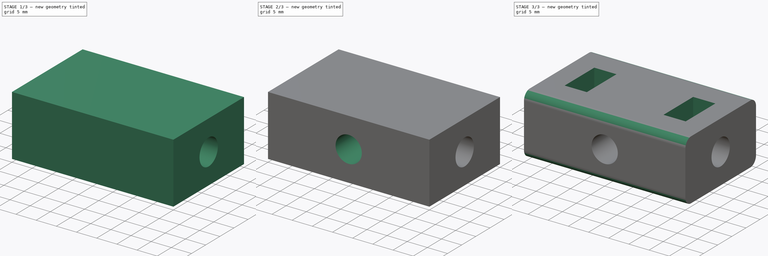
[diagram: build sequence overview — one tinted view per stage of 3, left to right]
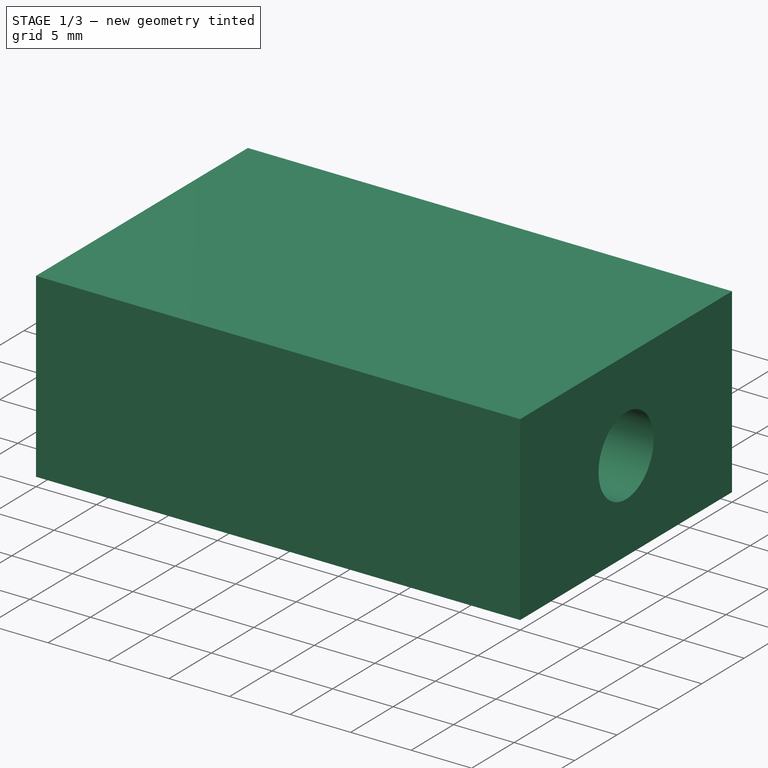
[diagram: stage 1 of 3 — iso view after this stage's code; geometry added in this stage tinted green]
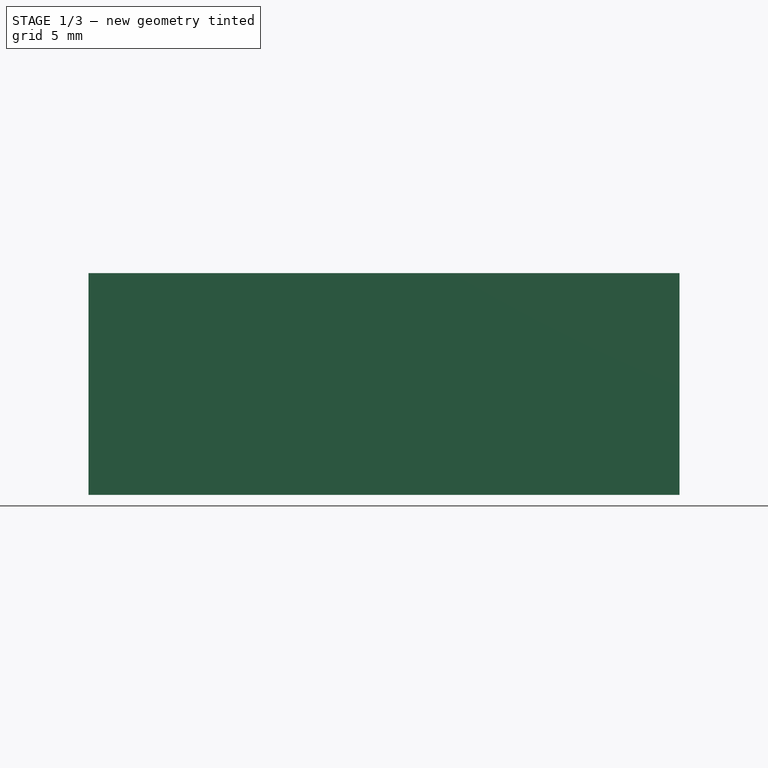
[diagram: stage 1 of 3 — front view after this stage's code; geometry added in this stage tinted green]
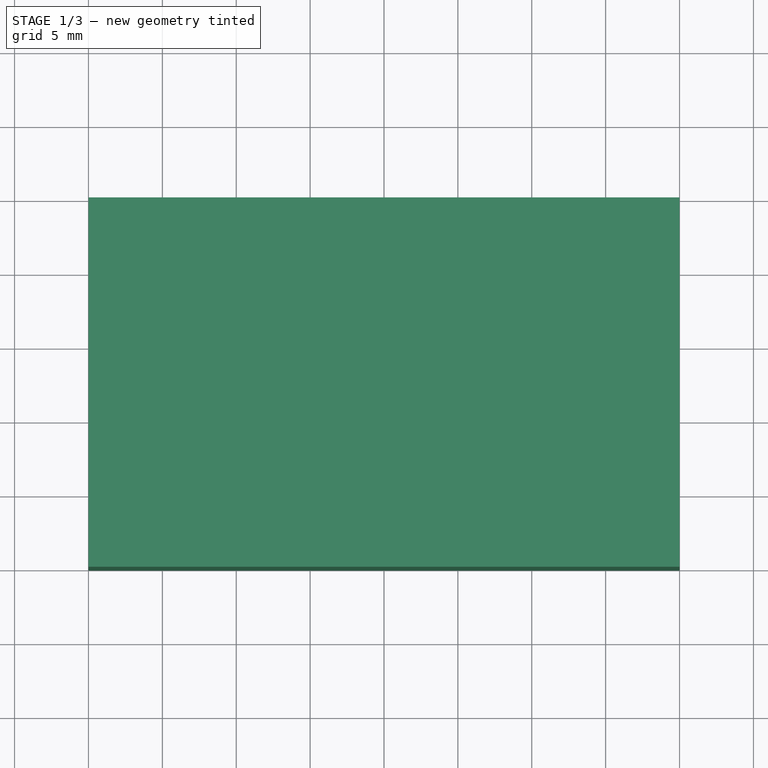
[diagram: stage 1 of 3 — top view after this stage's code; geometry added in this stage tinted green]
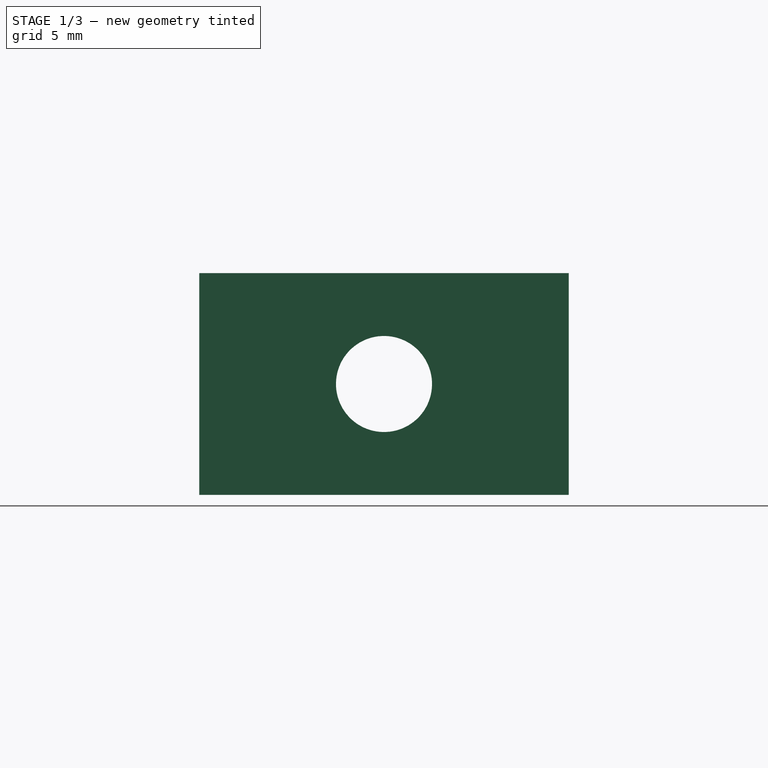
[diagram: stage 1 of 3 — right view after this stage's code; geometry added in this stage tinted green]
FCSTD DOCUMENT  (FreeCAD 0.21R33771 (Git))
Label: holder_type2_center
License: All rights reserved
LicenseURL: https://en.wikipedia.org/wiki/All_rights_reserved
objects: Sketcher::SketchObject×4, PartDesign::Pocket×3, PartDesign::Pad×1, PartDesign::Fillet×1, PartDesign::Body×1
note: 15 computed .brp shape members not serialized (recipe doc carries the construction recipe); baked Part::Feature solids carry a one-line shape summary decoded from their .brp

FEATURE [Sketcher::SketchObject] Sketch
  FullyConstrained = true
  MapMode = 5
  Support = -> [XY_Plane]
  sketch-geometry (4):
    g0: LineSegment StartX=0 StartY=0 StartZ=0 EndX=40 EndY=0 EndZ=0
    g1: LineSegment StartX=40 StartY=0 StartZ=0 EndX=40 EndY=25 EndZ=0
    g2: LineSegment StartX=40 StartY=25 StartZ=0 EndX=0 EndY=25 EndZ=0
    g3: LineSegment StartX=0 StartY=25 StartZ=0 EndX=0 EndY=0 EndZ=0
  constraints (11):
    c: Coincident(g0,g1)
    c: Coincident(g1,g2)
    c: Coincident(g2,g3)
    c: Coincident(g3,g0)
    c: Horizontal(g0)
    c: Horizontal(g2)
    c: Vertical(g1)
    c: Vertical(g3)
    c: Coincident(g0,g-1)
    c: DistanceY(g1,g1) = 25
    c: DistanceX(g2,g2) = 40
FEATURE [PartDesign::Pad] Pad
  Direction = (0,0,1)
  Length = 15
  Length2 = 10
  Profile = -> Sketch
  ReferenceAxis = -> Sketch [N_Axis]
  Type = 0
FEATURE [Sketcher::SketchObject] Sketch001
  ExternalGeometry = -> [Pad]
  FullyConstrained = true
  MapMode = 5
  Placement = pos=(40,0,0) rot=(0.57735,0.57735,0.57735;2.0944rad)
  Support = -> [Pad]
  sketch-geometry (4):
    g0: Circle CenterX=12.5 CenterY=7.5 CenterZ=0 NormalX=0 NormalY=0 NormalZ=1 AngleXU=0 Radius=3.25
    g1: LineSegment StartX=0 StartY=15 StartZ=0 EndX=12.5 EndY=7.5 EndZ=0
    g2: LineSegment StartX=12.5 StartY=7.5 StartZ=0 EndX=25 EndY=15 EndZ=0
    g3: LineSegment StartX=12.5 StartY=7.5 StartZ=0 EndX=0 EndY=9e-16 EndZ=0
  constraints (9):
    c: Diameter(g0) = 6.5
    c: Coincident(g1,g-3)
    c: Coincident(g1,g0)
    c: Coincident(g2,g0)
    c: Coincident(g2,g-3)
    c: Equal(g2,g1)
    c: Coincident(g3,g0)
    c: Coincident(g3,g-1)
    c: Equal(g1,g3)
FEATURE [PartDesign::Pocket] Pocket
  BaseFeature = -> Pad
  Direction = (-1,0,0)
  Length = 5
  Length2 = 5
  Profile = -> Sketch001
  ReferenceAxis = -> Sketch001 [N_Axis]
  Type = 1
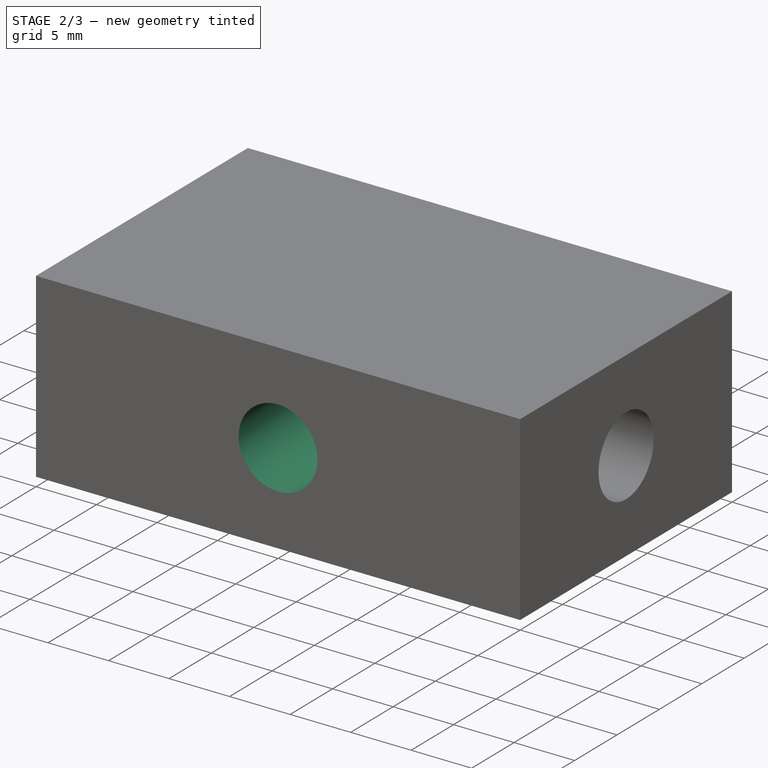
[diagram: stage 2 of 3 — iso view after this stage's code; geometry added in this stage tinted green]
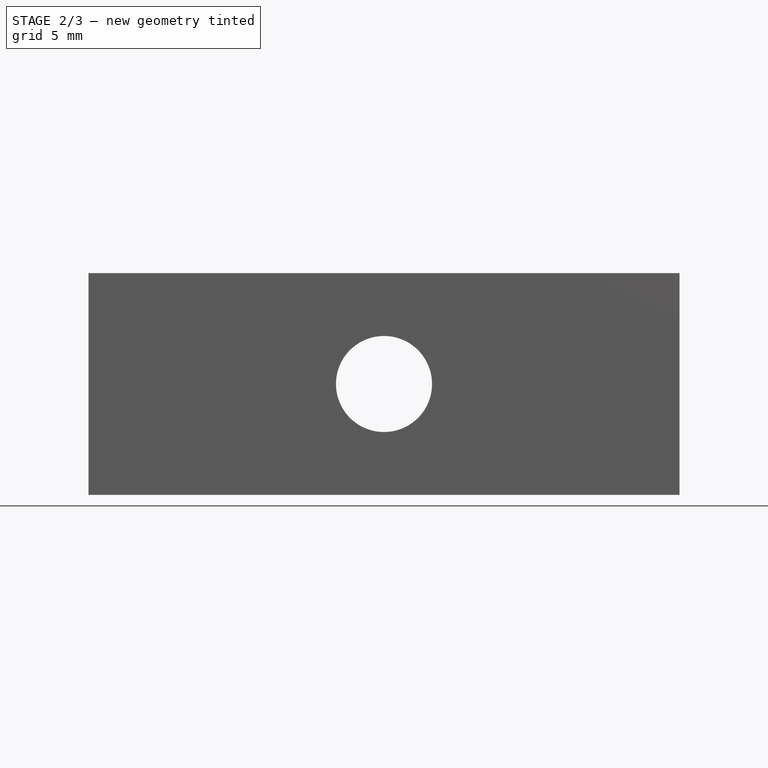
[diagram: stage 2 of 3 — front view after this stage's code; geometry added in this stage tinted green]
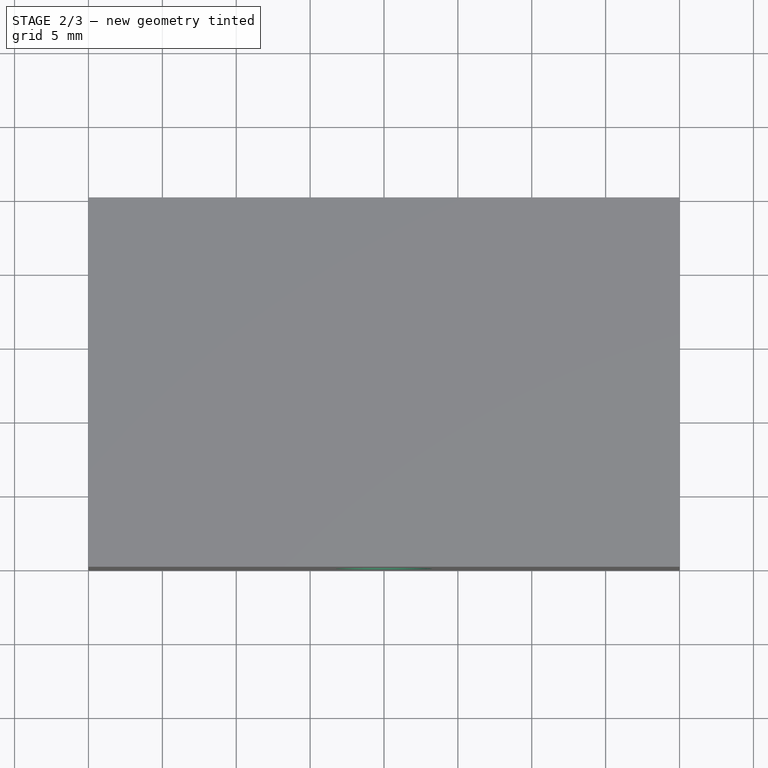
[diagram: stage 2 of 3 — top view after this stage's code; geometry added in this stage tinted green]
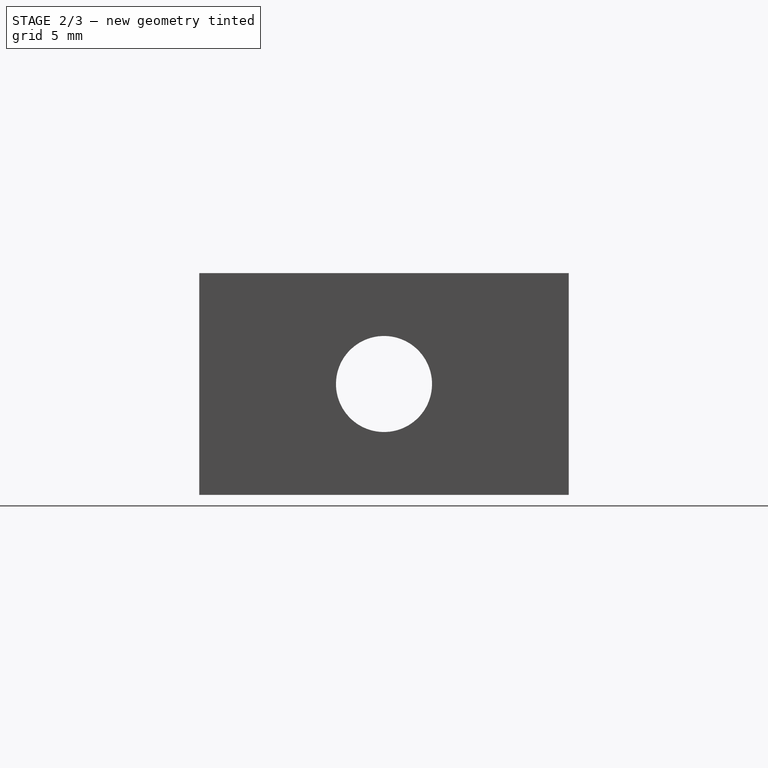
[diagram: stage 2 of 3 — right view after this stage's code; geometry added in this stage tinted green]
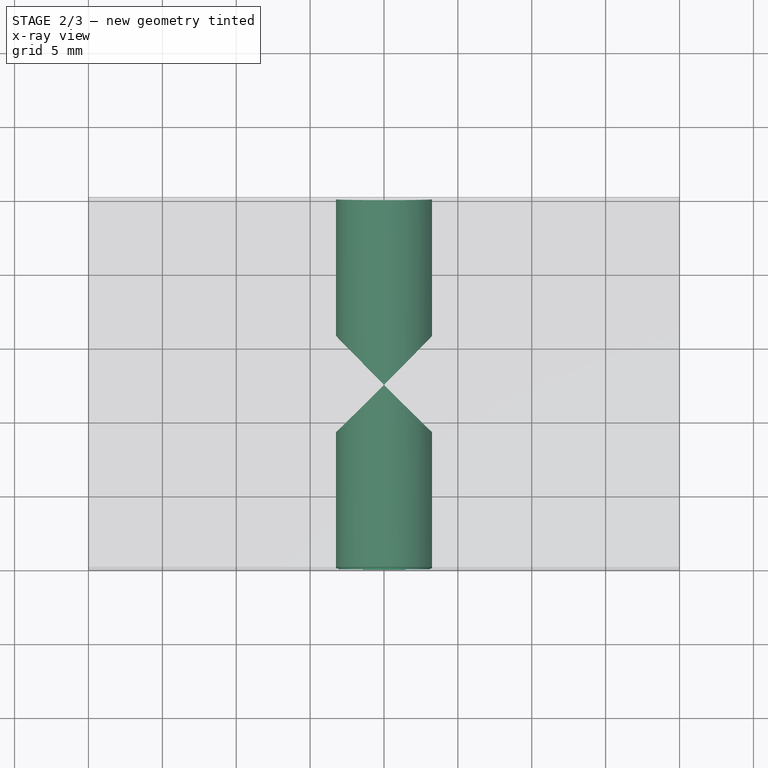
[diagram: stage 2 of 3 — x-ray composite at the top view; earlier geometry ghosted, this stage's added geometry solid]
FEATURE [Sketcher::SketchObject] Sketch002
  ExternalGeometry = -> [Pocket]
  FullyConstrained = true
  MapMode = 5
  Placement = pos=(0,0,0) rot=(1,0,0;1.5708rad)
  Support = -> [Pocket]
  sketch-geometry (4):
    g0: LineSegment StartX=0 StartY=15 StartZ=0 EndX=20 EndY=7.5 EndZ=0
    g1: LineSegment StartX=20 StartY=7.5 StartZ=0 EndX=40 EndY=15 EndZ=0
    g2: LineSegment StartX=20 StartY=7.5 StartZ=0 EndX=0 EndY=0 EndZ=0
    g3: Circle CenterX=20 CenterY=7.5 CenterZ=0 NormalX=0 NormalY=0 NormalZ=1 AngleXU=0 Radius=3.25
  constraints (9):
    c: Coincident(g0,g-3)
    c: Coincident(g1,g0)
    c: Coincident(g1,g-3)
    c: Coincident(g2,g-1)
    c: Equal(g1,g0)
    c: Equal(g0,g2)
    c: Coincident(g0,g3)
    c: Coincident(g3,g2)
    c: Diameter(g3) = 6.5
FEATURE [PartDesign::Pocket] Pocket001
  BaseFeature = -> Pocket
  Direction = (0,1,-2e-16)
  Length = 5
  Length2 = 5
  Profile = -> Sketch002
  ReferenceAxis = -> Sketch002 [N_Axis]
  Type = 1
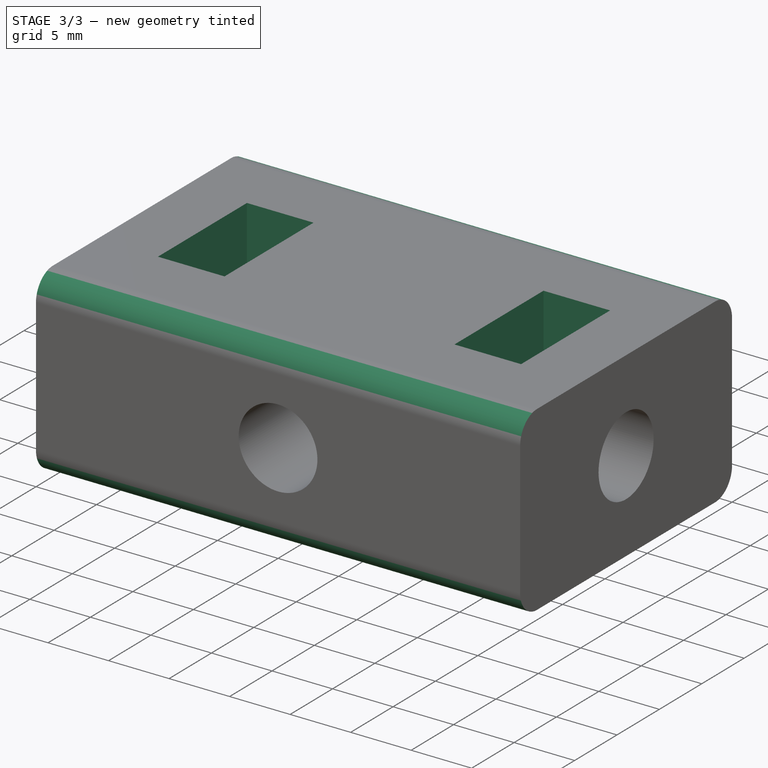
[diagram: stage 3 of 3 — iso view after this stage's code; geometry added in this stage tinted green]
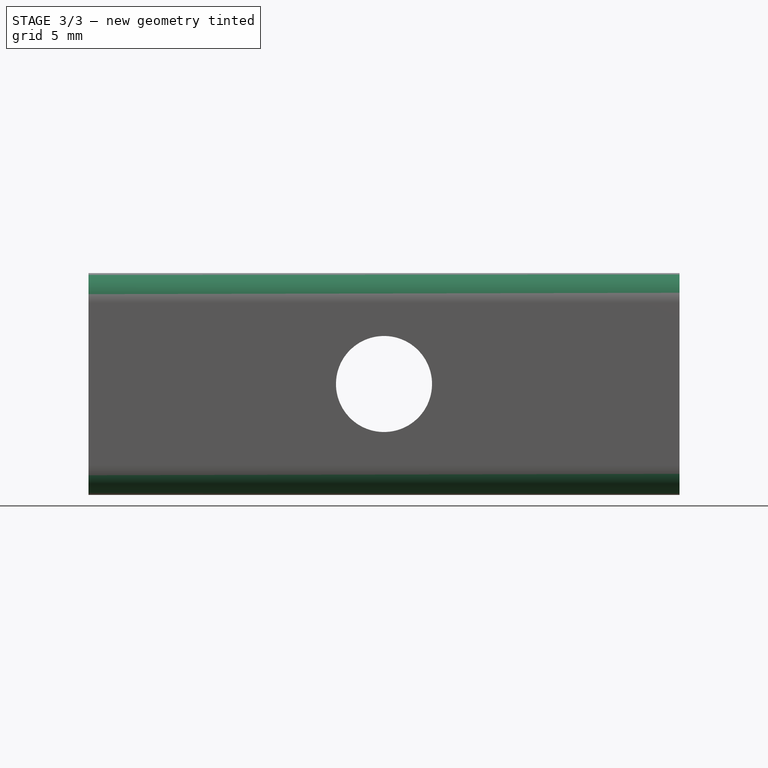
[diagram: stage 3 of 3 — front view after this stage's code; geometry added in this stage tinted green]
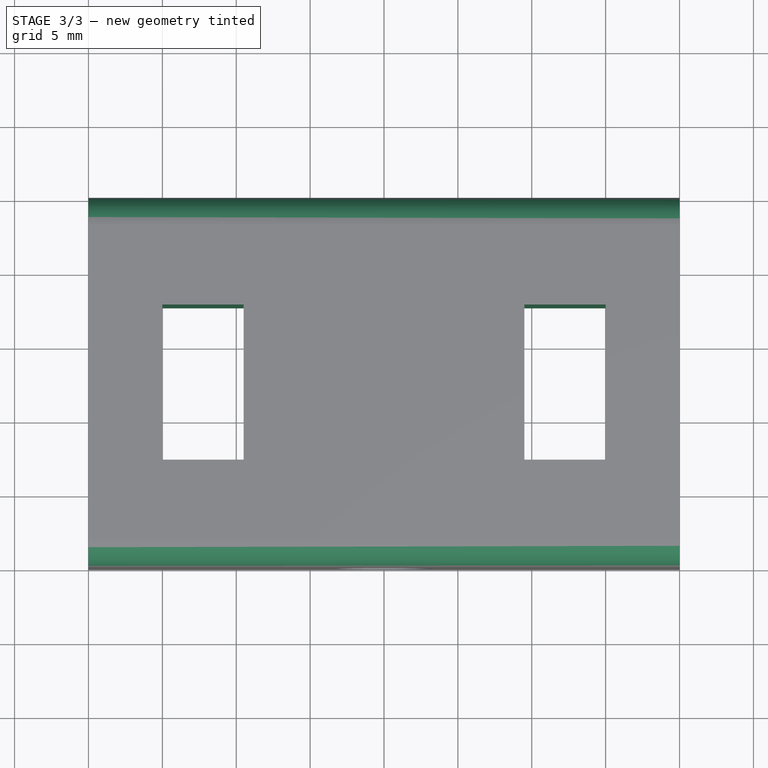
[diagram: stage 3 of 3 — top view after this stage's code; geometry added in this stage tinted green]
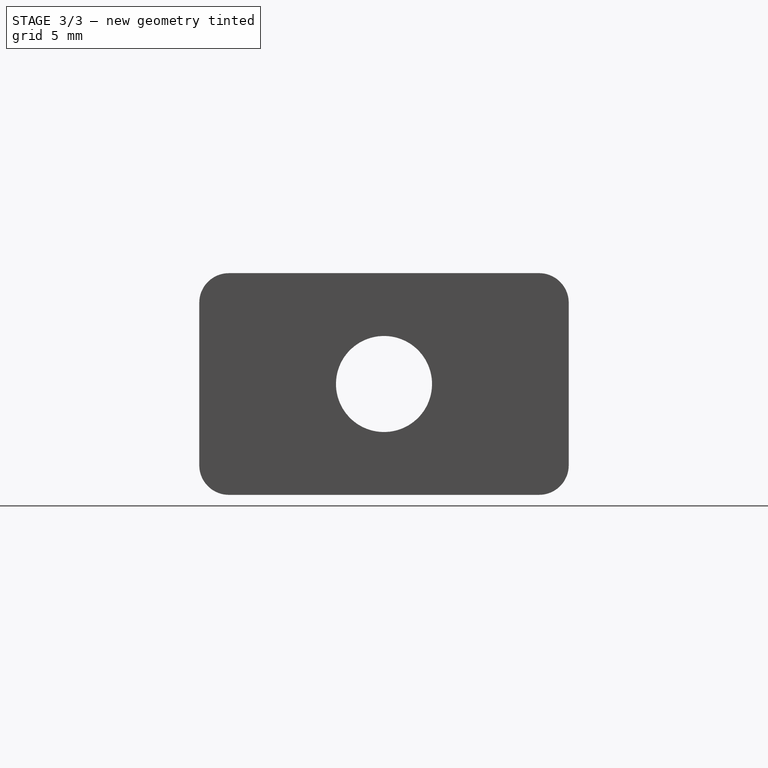
[diagram: stage 3 of 3 — right view after this stage's code; geometry added in this stage tinted green]
FEATURE [Sketcher::SketchObject] Sketch003
  ExternalGeometry = -> [Pocket001]
  FullyConstrained = true
  MapMode = 5
  Placement = pos=(0,0,15) rot=(0,0,1;0rad)
  Support = -> [Pocket001]
  sketch-geometry (12):
    g0: LineSegment StartX=5 StartY=17.75 StartZ=0 EndX=10.5 EndY=17.75 EndZ=0
    g1: LineSegment StartX=10.5 StartY=17.75 StartZ=0 EndX=10.5 EndY=7.25 EndZ=0
    g2: LineSegment StartX=10.5 StartY=7.25 StartZ=0 EndX=5 EndY=7.25 EndZ=0
    g3: LineSegment StartX=5 StartY=7.25 StartZ=0 EndX=5 EndY=17.75 EndZ=0
    g4: LineSegment StartX=29.5 StartY=17.75 StartZ=0 EndX=35 EndY=17.75 EndZ=0
    g5: LineSegment StartX=35 StartY=17.75 StartZ=0 EndX=35 EndY=7.25 EndZ=0
    g6: LineSegment StartX=35 StartY=7.25 StartZ=0 EndX=29.5 EndY=7.25 EndZ=0
    g7: LineSegment StartX=29.5 StartY=7.25 StartZ=0 EndX=29.5 EndY=17.75 EndZ=0
    g8: LineSegment StartX=0 StartY=25 StartZ=0 EndX=5 EndY=17.75 EndZ=0
    g9: LineSegment StartX=10.5 StartY=17.75 StartZ=0 EndX=29.5 EndY=17.75 EndZ=0
    g10: LineSegment StartX=5 StartY=7.25 StartZ=0 EndX=0 EndY=0 EndZ=0
    g11: LineSegment StartX=35 StartY=17.75 StartZ=0 EndX=40 EndY=25 EndZ=0
  constraints (32):
    c: Coincident(g0,g1)
    c: Coincident(g1,g2)
    c: Coincident(g2,g3)
    c: Coincident(g3,g0)
    c: Horizontal(g0)
    c: Horizontal(g2)
    c: Vertical(g1)
    c: Vertical(g3)
    c: Coincident(g4,g5)
    c: Coincident(g5,g6)
    c: Coincident(g6,g7)
    c: Coincident(g7,g4)
    c: Horizontal(g4)
    c: Horizontal(g6)
    c: Vertical(g5)
    c: Vertical(g7)
    c: Coincident(g8,g-3)
    c: Coincident(g8,g0)
    c: Coincident(g9,g0)
    c: Coincident(g9,g4)
    c: Horizontal(g9)
    c: Coincident(g10,g2)
    c: Coincident(g10,g-1)
    c: Equal(g10,g8)
    c: DistanceY(g3,g3) = 10.5
    c: DistanceX(g0,g0) = 5.5
    c: Equal(g7,g1)
    c: Equal(g4,g0)
    c: Coincident(g11,g4)
    c: Coincident(g11,g-3)
    c: Equal(g8,g11)
    c: DistanceX(g8,g8) = 5
FEATURE [PartDesign::Pocket] Pocket002
  BaseFeature = -> Pocket001
  Direction = (0,0,-1)
  Length = 5
  Length2 = 5
  Profile = -> Sketch003
  ReferenceAxis = -> Sketch003 [N_Axis]
  Type = 1
FEATURE [PartDesign::Fillet] Fillet
  Base = -> Pocket002 [Edge3,Edge2,Edge21,Edge11]
  BaseFeature = -> Pocket002
  Radius = 2
  SupportTransform = false
  UseAllEdges = false
FEATURE [PartDesign::Body] Body  label="Körper"
  Group = -> [Sketch,Pad,Sketch001,Pocket,Sketch002,Pocket001,Sketch003,Pocket002,Fillet]
  Origin = -> Origin
  Tip = -> Fillet
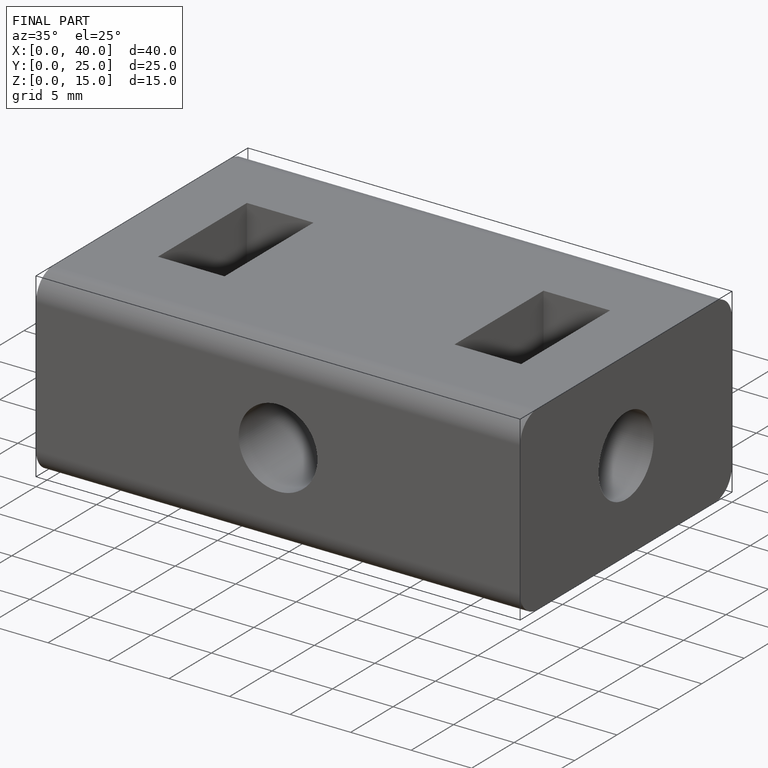
[diagram: finished part — iso view with bounding-box wireframe]
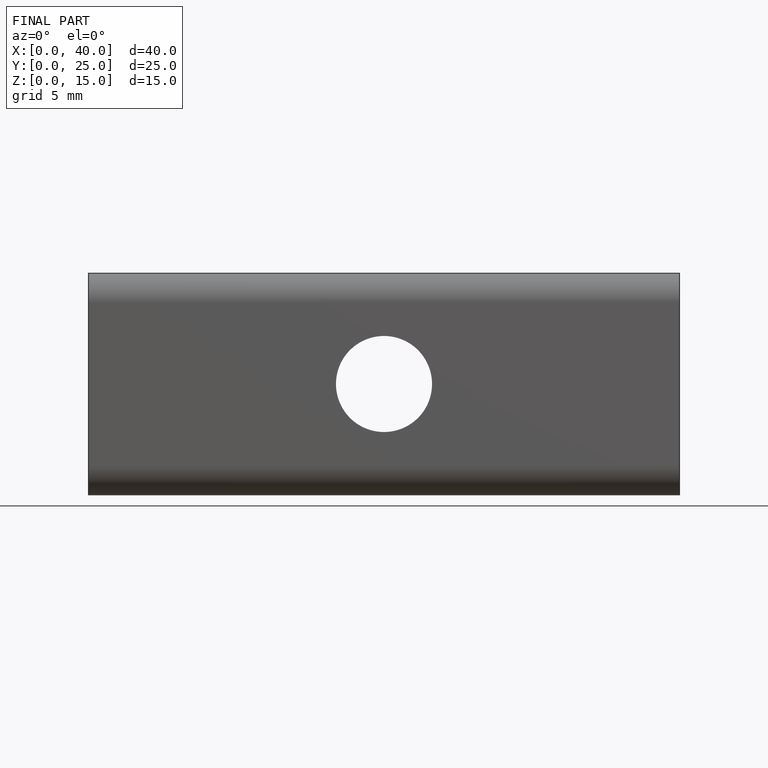
[diagram: finished part — front view with bounding-box wireframe]
